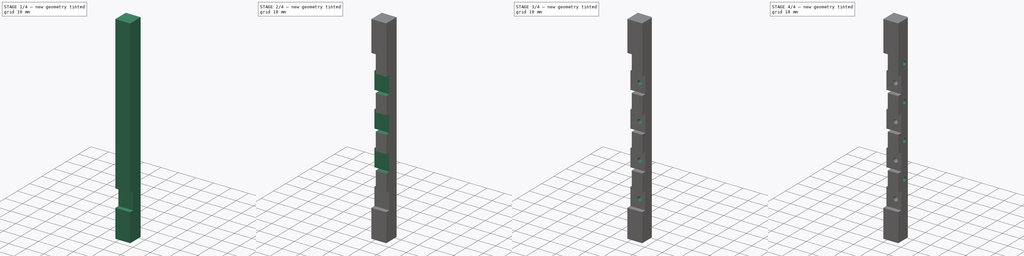
[diagram: build sequence overview — one tinted view per stage of 4, left to right]
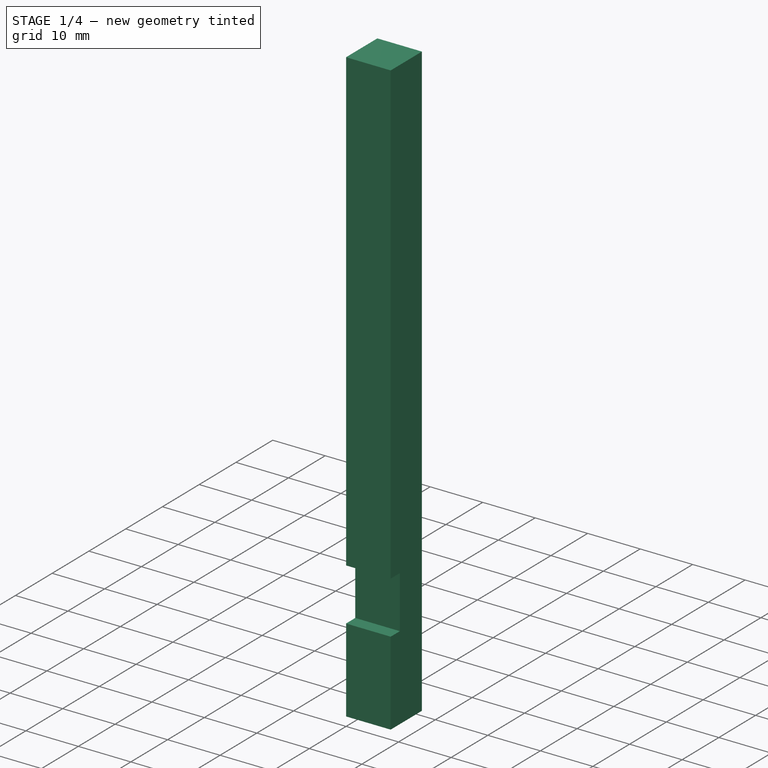
[diagram: stage 1 of 4 — iso view after this stage's code; geometry added in this stage tinted green]
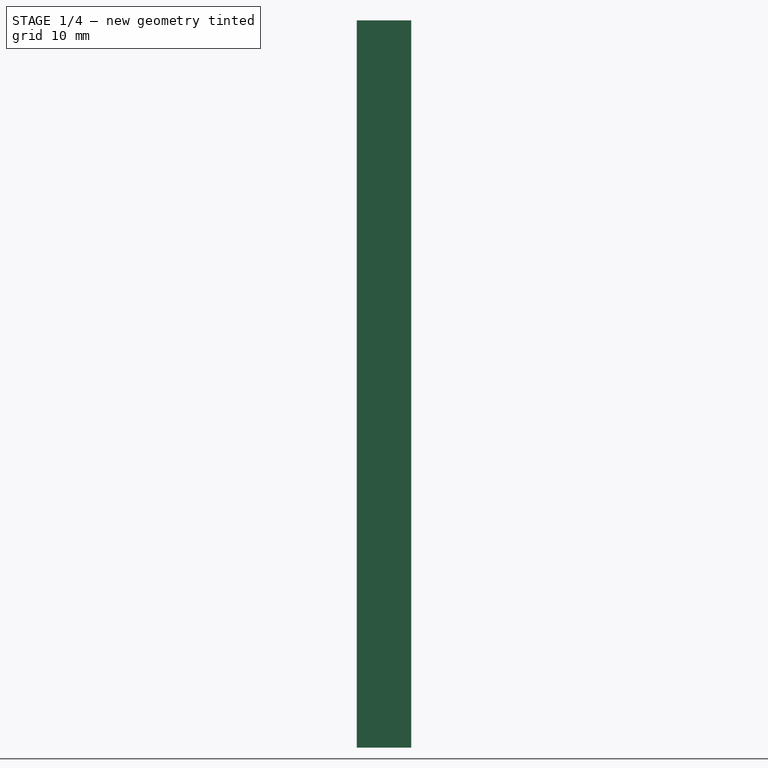
[diagram: stage 1 of 4 — front view after this stage's code; geometry added in this stage tinted green]
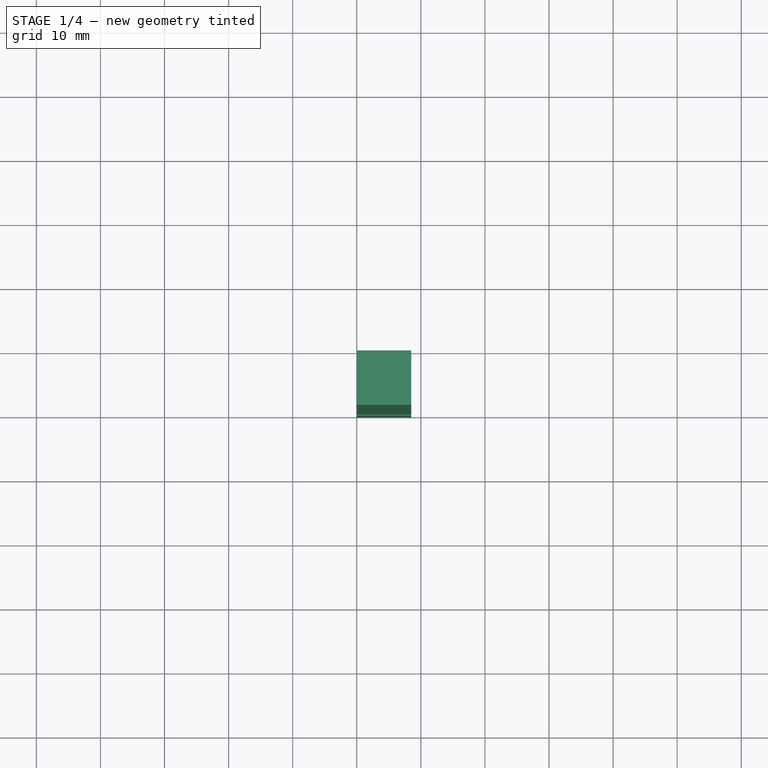
[diagram: stage 1 of 4 — top view after this stage's code; geometry added in this stage tinted green]
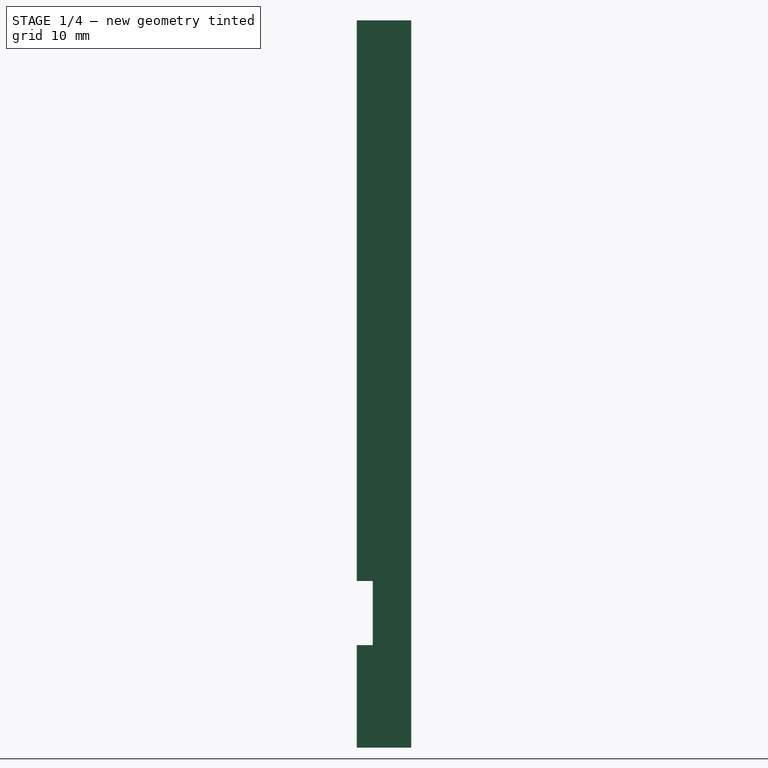
[diagram: stage 1 of 4 — right view after this stage's code; geometry added in this stage tinted green]
FCSTD DOCUMENT  (FreeCAD 0.16R6710 (Git))
Label: columna
License: All rights reserved
LicenseURL: http://en.wikipedia.org/wiki/All_rights_reserved
objects: Sketcher::SketchObject×5, PartDesign::Pocket×4, PartDesign::LinearPattern×4, PartDesign::Pad×1, PartDesign::Fillet×1
note: 20 computed .brp shape members not serialized (recipe doc carries the construction recipe); baked Part::Feature solids carry a one-line shape summary decoded from their .brp

FEATURE [Sketcher::SketchObject] Sketch
  sketch-geometry (4):
    g0: LineSegment StartX=0 StartY=0 StartZ=0 EndX=8.5 EndY=0 EndZ=0
    g1: LineSegment StartX=8.5 StartY=0 StartZ=0 EndX=8.5 EndY=8.5 EndZ=0
    g2: LineSegment StartX=8.5 StartY=8.5 StartZ=0 EndX=0 EndY=8.5 EndZ=0
    g3: LineSegment StartX=0 StartY=8.5 StartZ=0 EndX=0 EndY=0 EndZ=0
  constraints (11):
    c: Coincident(g0,g1)
    c: Coincident(g1,g2)
    c: Coincident(g2,g3)
    c: Coincident(g3,g0)
    c: Horizontal(g0)
    c: Horizontal(g2)
    c: Vertical(g1)
    c: Vertical(g3)
    c: Equal(g0,g1)
    c: DistanceY(g1,g1) = 8.5
    c: Coincident(g0,g-1)
FEATURE [PartDesign::Pad] Pad
  Length = 113.5
  Length2 = 100
  Sketch = -> Sketch
  Type = 0
FEATURE [Sketcher::SketchObject] Sketch001
  ExternalGeometry = -> [Pad]
  Placement = pos=(0,0,0) rot=(1,0,0;1.5708rad)
  Support = -> Pad [Face1]
  sketch-geometry (4):
    g0: LineSegment StartX=-0.589031 StartY=16 StartZ=0 EndX=9.41097 EndY=16 EndZ=0
    g1: LineSegment StartX=9.41097 StartY=16 StartZ=0 EndX=9.41097 EndY=26 EndZ=0
    g2: LineSegment StartX=9.41097 StartY=26 StartZ=0 EndX=-0.589031 EndY=26 EndZ=0
    g3: LineSegment StartX=-0.589031 StartY=26 StartZ=0 EndX=-0.589031 EndY=16 EndZ=0
  constraints (11):
    c: Coincident(g0,g1)
    c: Coincident(g1,g2)
    c: Coincident(g2,g3)
    c: Coincident(g3,g0)
    c: Horizontal(g0)
    c: Horizontal(g2)
    c: Vertical(g1)
    c: Vertical(g3)
    c: Equal(g1,g0)
    c: DistanceY(g1,g1) = 10
    c: DistanceY(g-1,g0) = 16
FEATURE [PartDesign::Pocket] Pocket
  Length = 2.5
  Sketch = -> Sketch001
  Type = 0
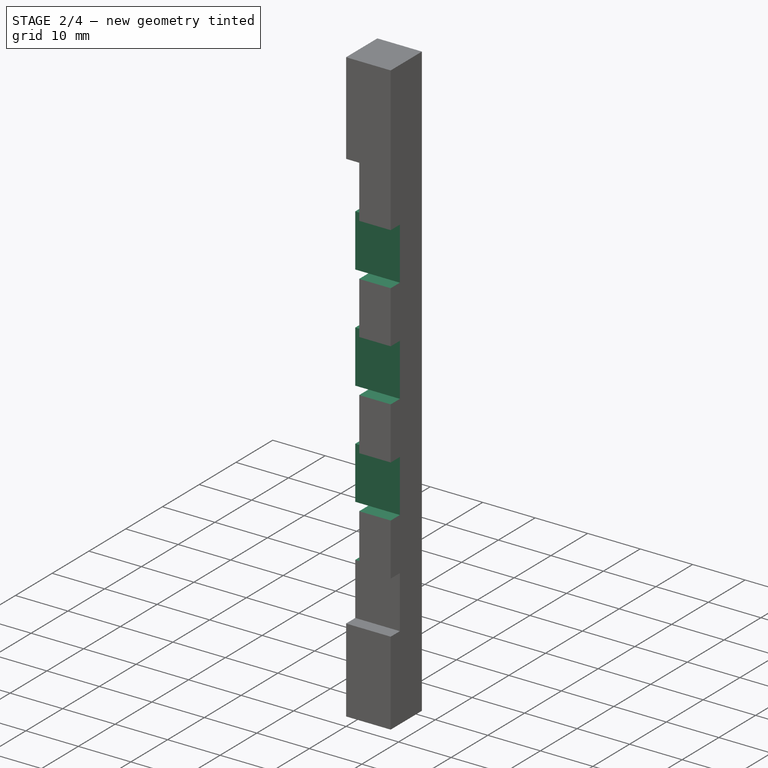
[diagram: stage 2 of 4 — iso view after this stage's code; geometry added in this stage tinted green]
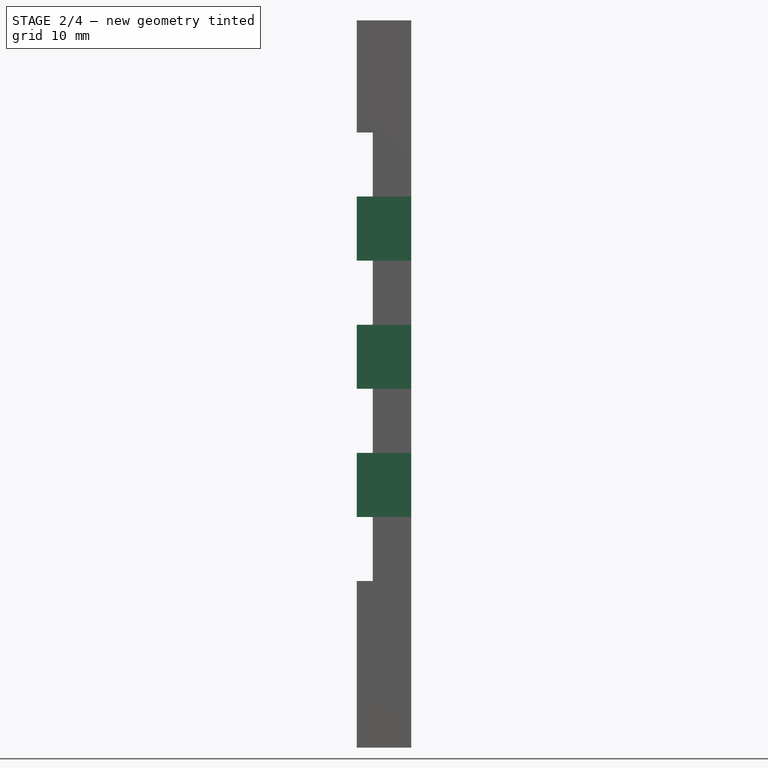
[diagram: stage 2 of 4 — front view after this stage's code; geometry added in this stage tinted green]
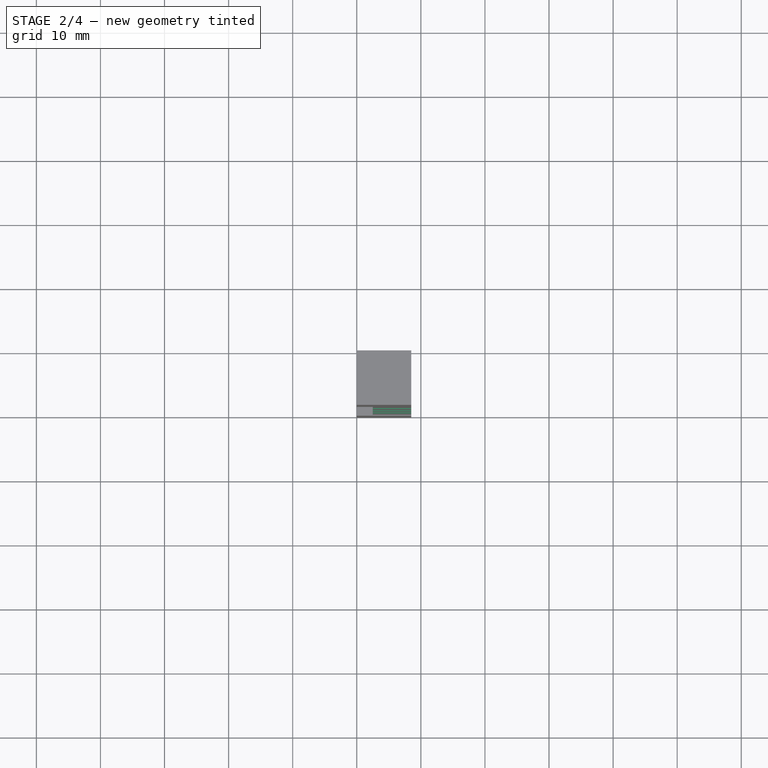
[diagram: stage 2 of 4 — top view after this stage's code; geometry added in this stage tinted green]
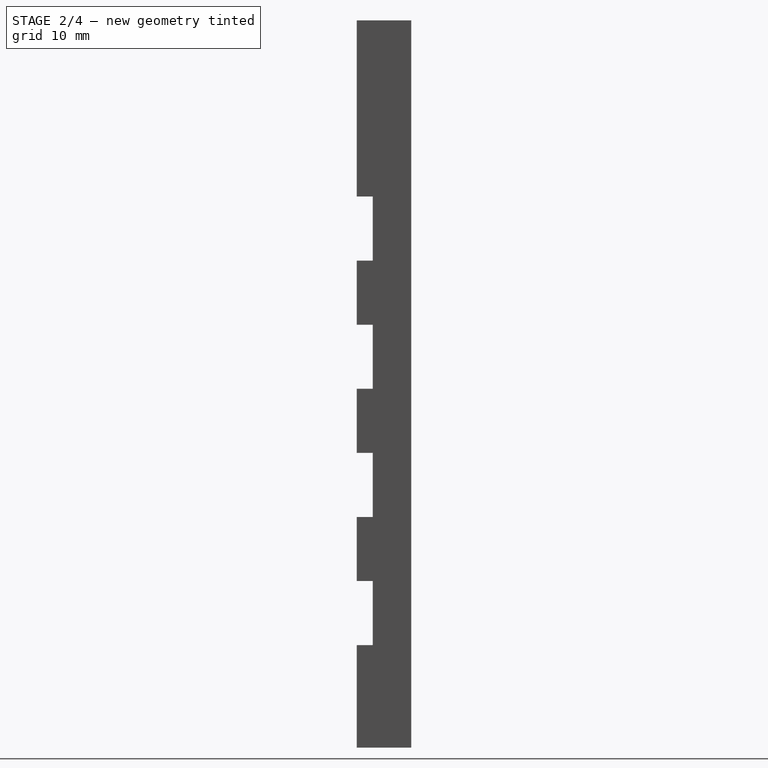
[diagram: stage 2 of 4 — right view after this stage's code; geometry added in this stage tinted green]
FEATURE [PartDesign::LinearPattern] LinearPattern
  Direction = -> Sketch001 [V_Axis]
  Length = 60
  Occurrences = 4
  Originals = -> [Pocket]
FEATURE [Sketcher::SketchObject] Sketch002
  Placement = pos=(0,0,0) rot=(0.57735,-0.57735,-0.57735;2.0944rad)
  Support = -> LinearPattern [Face5]
  sketch-geometry (4):
    g0: LineSegment StartX=-9.32683 StartY=36 StartZ=0 EndX=0.673175 EndY=36 EndZ=0
    g1: LineSegment StartX=0.673175 StartY=36 StartZ=0 EndX=0.673175 EndY=26 EndZ=0
    g2: LineSegment StartX=0.673175 StartY=26 StartZ=0 EndX=-9.32683 EndY=26 EndZ=0
    g3: LineSegment StartX=-9.32683 StartY=26 StartZ=0 EndX=-9.32683 EndY=36 EndZ=0
  constraints (11):
    c: Coincident(g0,g1)
    c: Coincident(g1,g2)
    c: Coincident(g2,g3)
    c: Coincident(g3,g0)
    c: Horizontal(g0)
    c: Horizontal(g2)
    c: Vertical(g1)
    c: Vertical(g3)
    c: Equal(g2,g1)
    c: DistanceY(g1,g1) = 10
    c: DistanceY(g-1,g2) = 26
FEATURE [PartDesign::Pocket] Pocket001
  Length = 2.5
  Sketch = -> Sketch002
  Type = 0
FEATURE [PartDesign::LinearPattern] LinearPattern001
  Direction = -> Sketch002 [V_Axis]
  Length = 60
  Occurrences = 4
  Originals = -> [Pocket001]
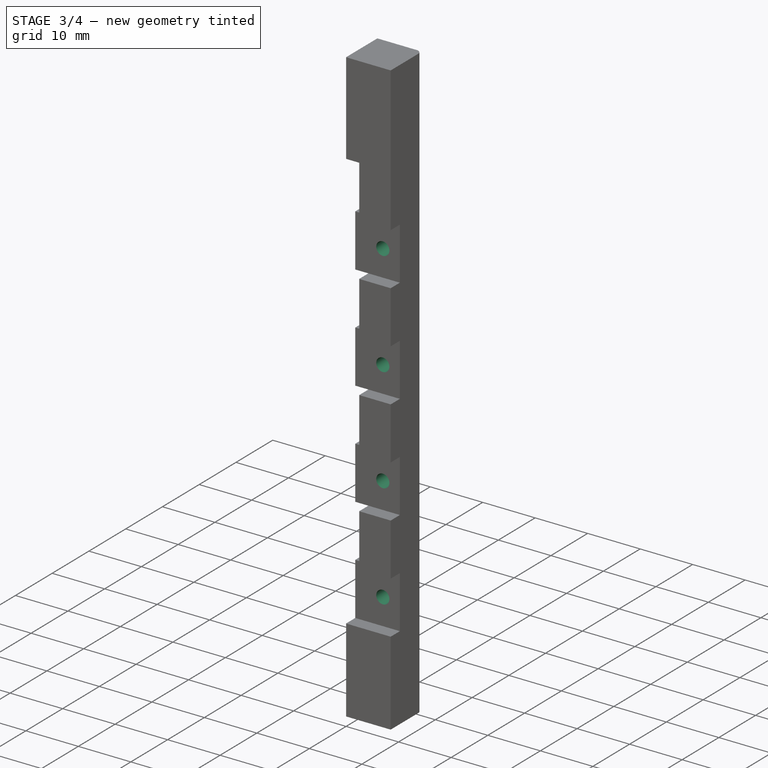
[diagram: stage 3 of 4 — iso view after this stage's code; geometry added in this stage tinted green]
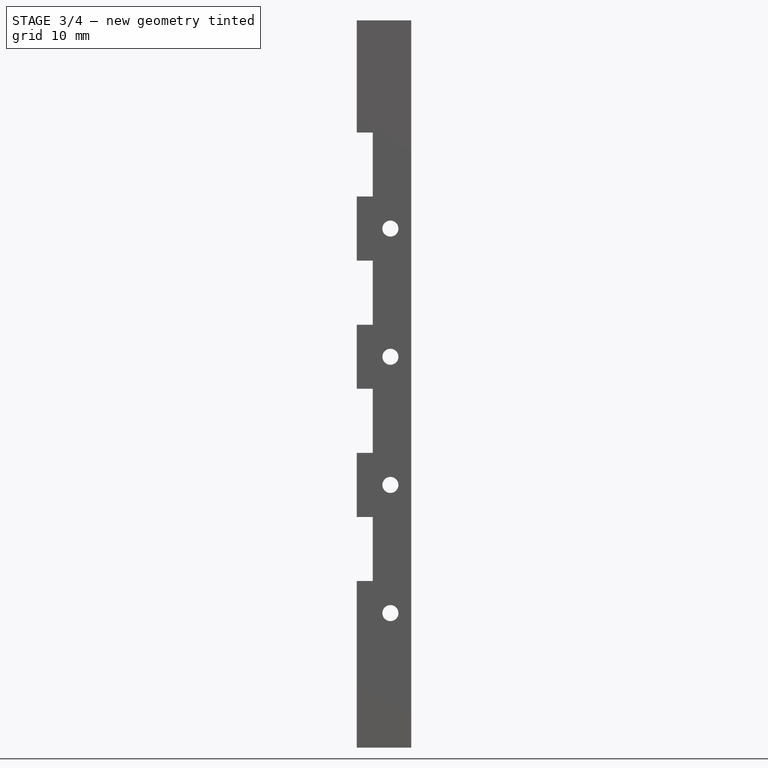
[diagram: stage 3 of 4 — front view after this stage's code; geometry added in this stage tinted green]
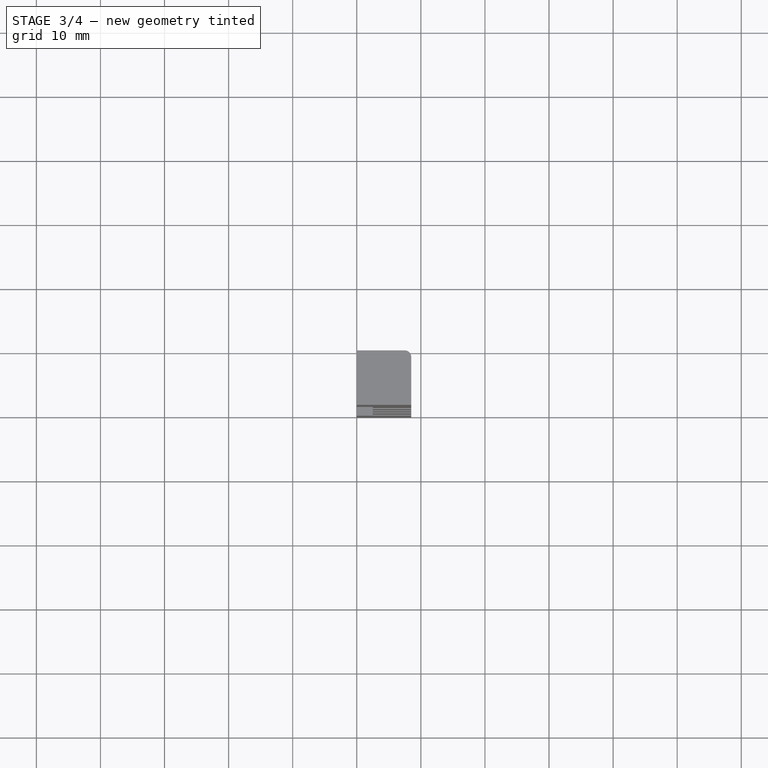
[diagram: stage 3 of 4 — top view after this stage's code; geometry added in this stage tinted green]
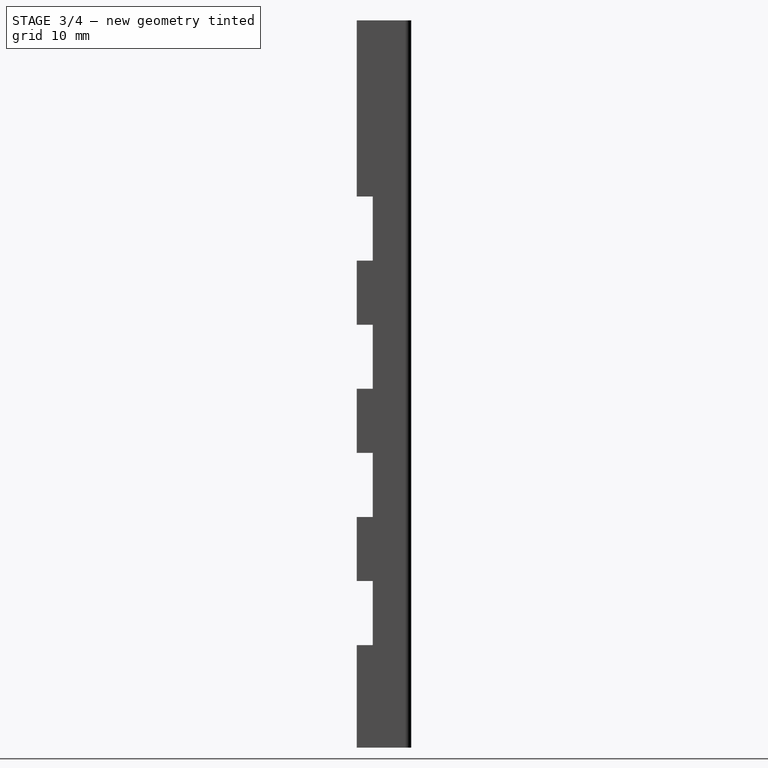
[diagram: stage 3 of 4 — right view after this stage's code; geometry added in this stage tinted green]
FEATURE [PartDesign::Fillet] Fillet
  Base = -> LinearPattern001 [Edge8]
  Radius = 1
FEATURE [Sketcher::SketchObject] Sketch003
  ExternalGeometry = -> [Fillet]
  Placement = pos=(0,2.5,0) rot=(1,0,0;1.5708rad)
  Support = -> Fillet [Face10]
  sketch-geometry (1):
    g0: Circle CenterX=5.25 CenterY=21 CenterZ=0 NormalX=0 NormalY=0 NormalZ=1 Radius=1.25
  constraints (3):
    c: Radius(g0) = 1.25
    c: DistanceY(g-3,g0) = 21
    c: DistanceX(g0,g-3) = 3.25
FEATURE [PartDesign::Pocket] Pocket002
  Length = 5
  Sketch = -> Sketch003
  Type = 1
FEATURE [PartDesign::LinearPattern] LinearPattern002
  Direction = -> Sketch003 [V_Axis]
  Length = 60
  Occurrences = 4
  Originals = -> [Pocket002]
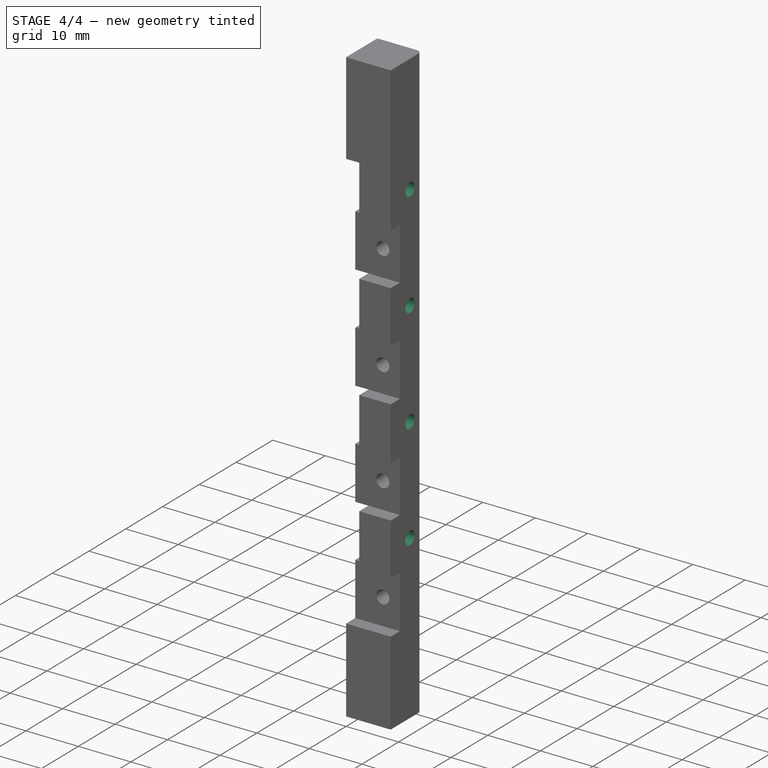
[diagram: stage 4 of 4 — iso view after this stage's code; geometry added in this stage tinted green]
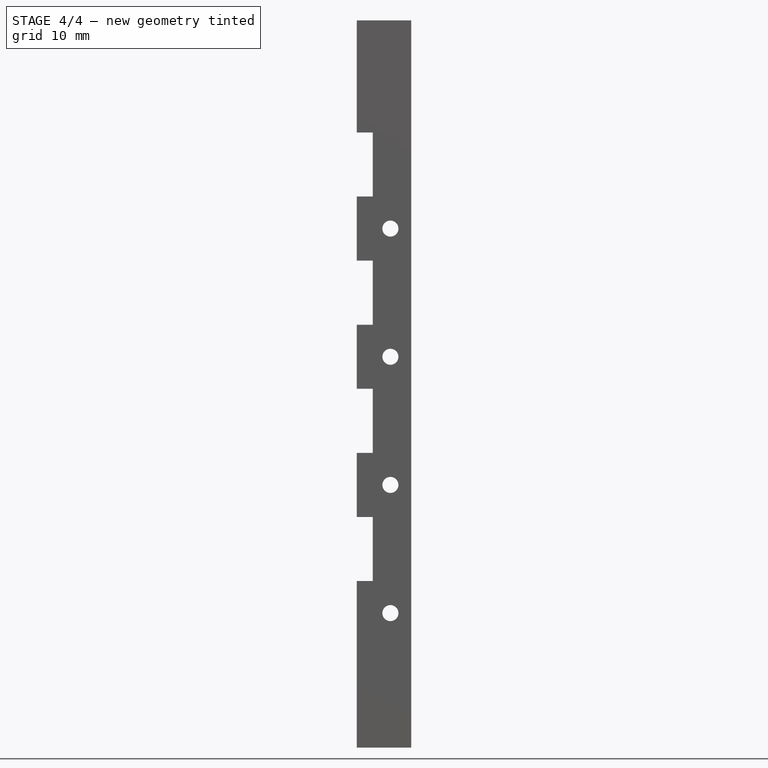
[diagram: stage 4 of 4 — front view after this stage's code; geometry added in this stage tinted green]
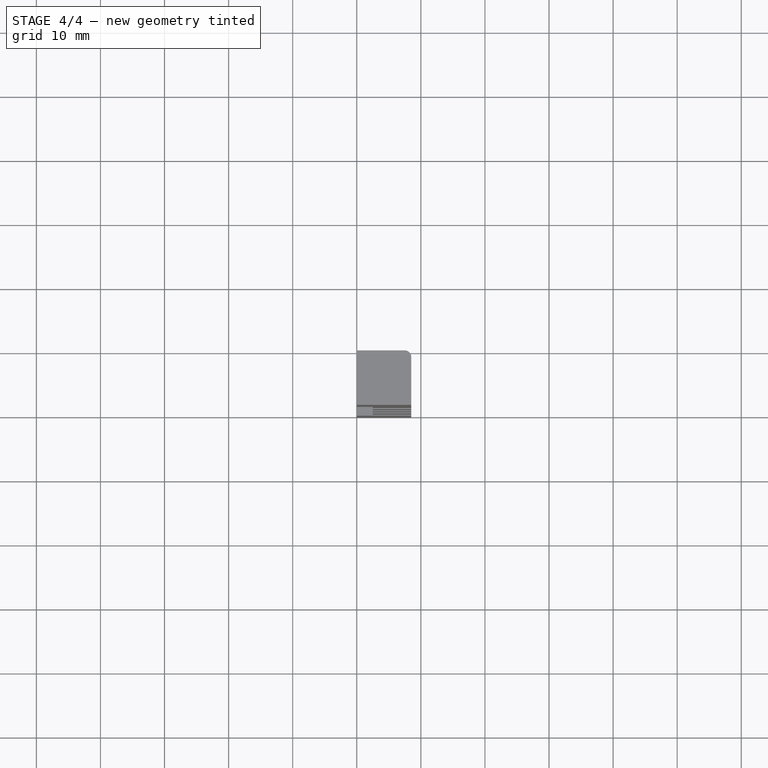
[diagram: stage 4 of 4 — top view after this stage's code; geometry added in this stage tinted green]
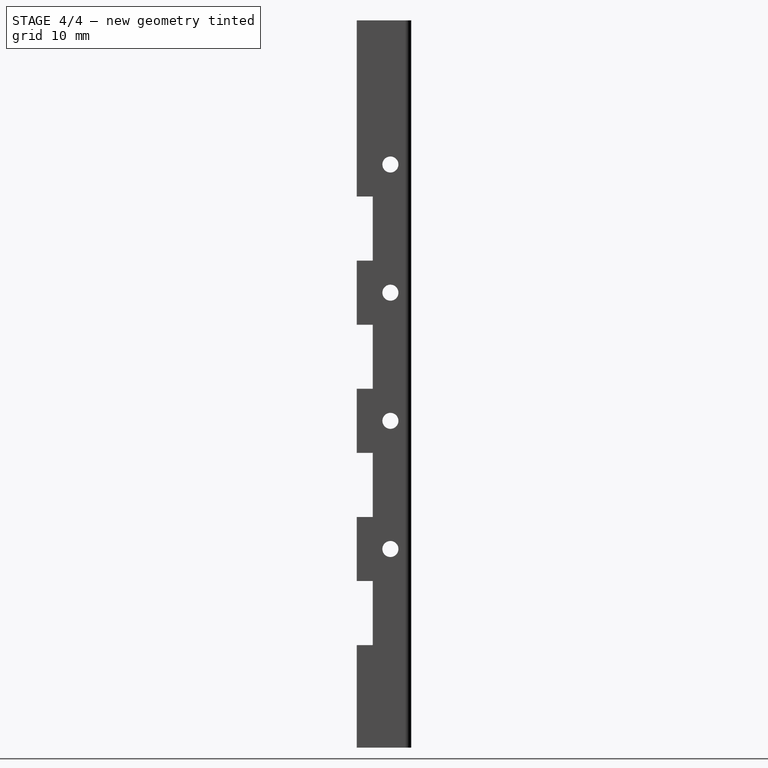
[diagram: stage 4 of 4 — right view after this stage's code; geometry added in this stage tinted green]
FEATURE [Sketcher::SketchObject] Sketch004
  ExternalGeometry = -> [LinearPattern002]
  Placement = pos=(2.5,0,0) rot=(0.57735,-0.57735,-0.57735;2.0944rad)
  Support = -> LinearPattern002 [Face26]
  sketch-geometry (1):
    g0: Circle CenterX=-5.25 CenterY=31 CenterZ=0 NormalX=0 NormalY=0 NormalZ=1 Radius=1.25
  constraints (3):
    c: Radius(g0) = 1.25
    c: DistanceX(g-3,g0) = 3.25
    c: DistanceY(g-3,g0) = 31
FEATURE [PartDesign::Pocket] Pocket003
  Length = 5
  Sketch = -> Sketch004
  Type = 1
FEATURE [PartDesign::LinearPattern] LinearPattern003
  Direction = -> Sketch004 [V_Axis]
  Length = 60
  Occurrences = 4
  Originals = -> [Pocket003]
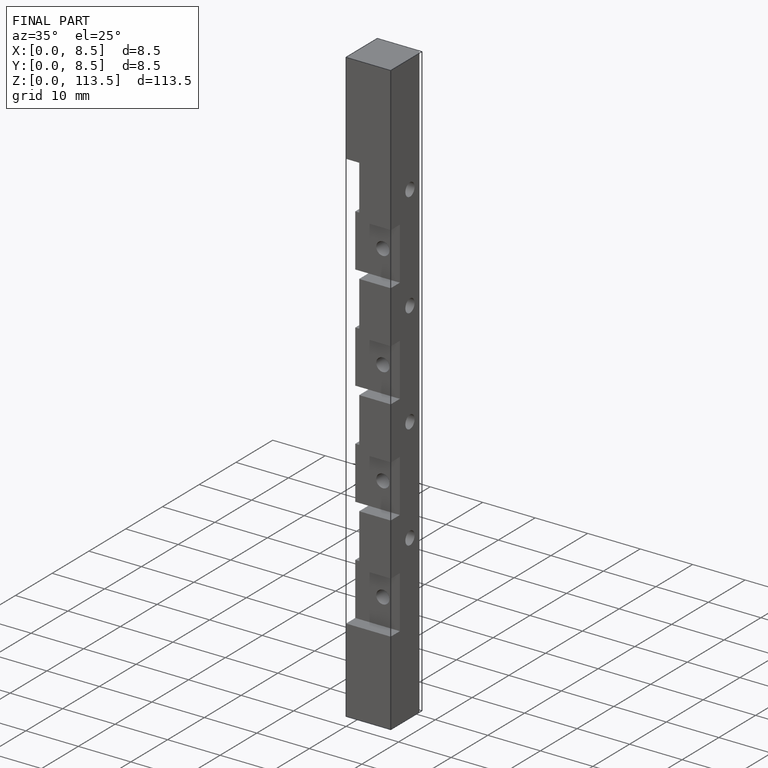
[diagram: finished part — iso view with bounding-box wireframe]
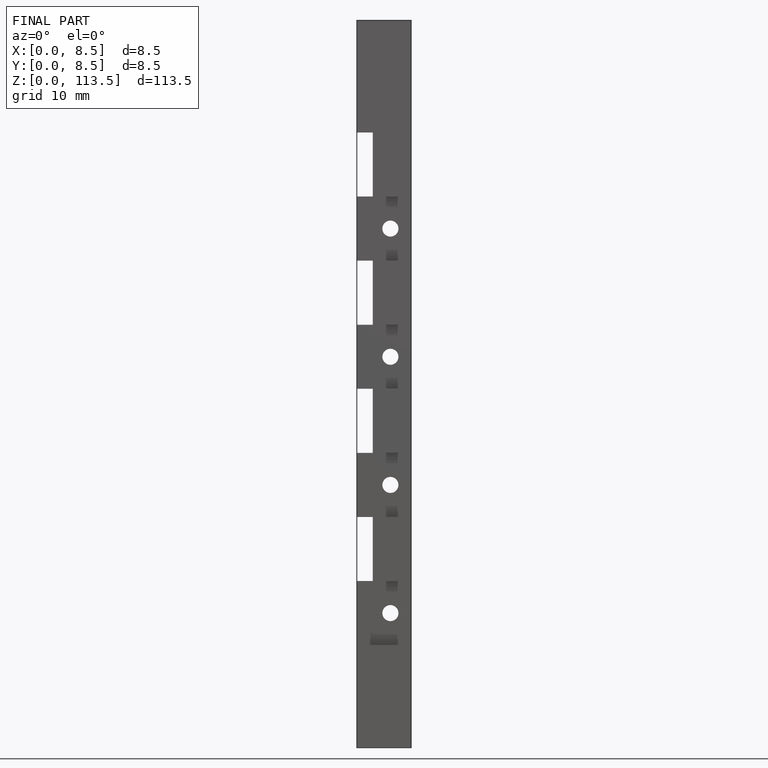
[diagram: finished part — front view with bounding-box wireframe]
